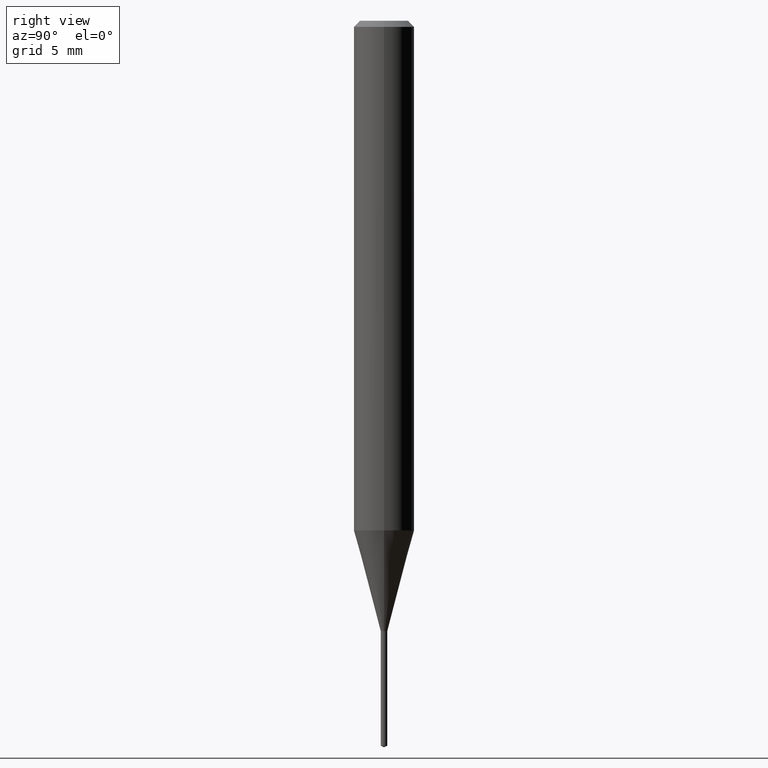
[diagram: clean part render]
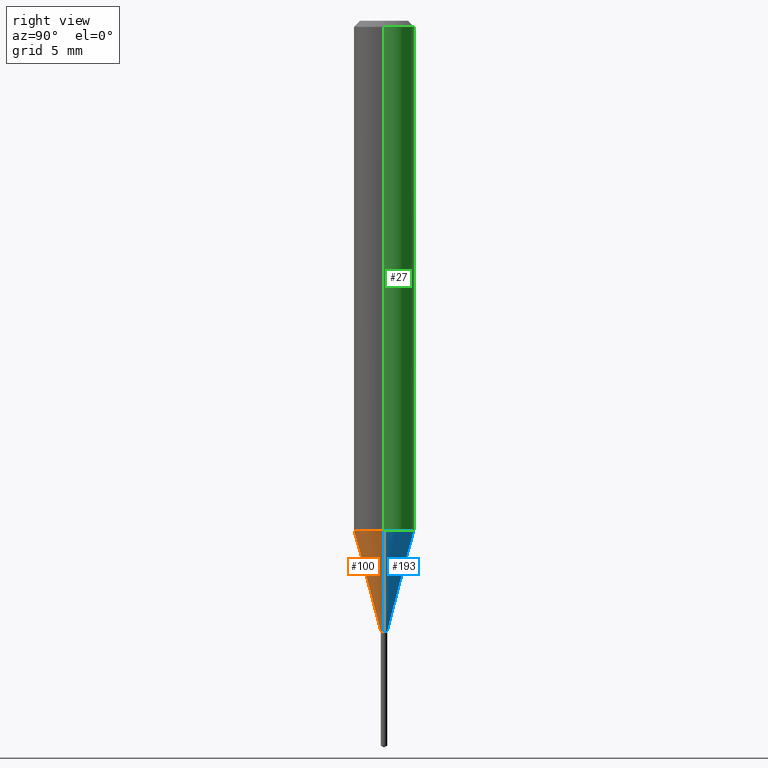
[diagram: same view with three faces highlighted in distinct colors, each labeled with its STEP entity id]
A machine part, right view with three faces highlighted in distinct colors.
Their STEP definitions:

[orange] entity #100 — the highlighted conical surface has half-angle 15 deg.
#5 = CARTESIAN_POINT ( 'NONE',  ( 2.573460162125579230E-29, -3.674219073901972026E-15, -1.052338167478040765 ) ) ;
#20 = VERTEX_POINT ( 'NONE', #104 ) ;
#43 = CIRCLE ( 'NONE', #353, 0.06250000000000013878 ) ;
#64 = ORIENTED_EDGE ( 'NONE', *, *, #450, .F. ) ;
#74 = DIRECTION ( 'NONE',  ( -2.445468806185136597E-29, 3.491481338843145583E-15, 1.000000000000000000 ) ) ;
#81 = LINE ( 'NONE', #422, #185 ) ;
#86 = LINE ( 'NONE', #286, #344 ) ;
#98 = VERTEX_POINT ( 'NONE', #225 ) ;
#100 = ADVANCED_FACE ( 'NONE', ( #430 ), #176, .T. ) ;
#104 = CARTESIAN_POINT ( 'NONE',  ( -0.06250000000000013878, -3.230129864051909015E-15, -1.052338167478040765 ) ) ;
#109 = EDGE_LOOP ( 'NONE', ( #287, #371, #435, #64 ) ) ;
#147 = CIRCLE ( 'NONE', #156, 0.006749999999999999056 ) ;
#151 = DIRECTION ( 'NONE',  ( 1.000000000000000000, -6.982962677686262766E-15, 0.000000000000000000 ) ) ;
#156 = AXIS2_PLACEMENT_3D ( 'NONE', #275, #462, #268 ) ;
#160 = DIRECTION ( 'NONE',  ( -2.445468806185136597E-29, 3.491481338843145583E-15, 1.000000000000000000 ) ) ;
#175 = VERTEX_POINT ( 'NONE', #310 ) ;
#176 = CONICAL_SURFACE ( 'NONE', #337, 0.006749999999999999056, 0.2617993877991569573 ) ;
#185 = VECTOR ( 'NONE', #196, 39.37007874015748854 ) ;
#189 = CARTESIAN_POINT ( 'NONE',  ( 3.082268883315746308E-29, -4.400663079477901323E-15, -1.260399999999999965 ) ) ;
#196 = DIRECTION ( 'NONE',  ( 0.2588190451025279559, 1.565188264969568522E-15, 0.9659258262890662028 ) ) ;
#211 = VERTEX_POINT ( 'NONE', #242 ) ;
#225 = CARTESIAN_POINT ( 'NONE',  ( -0.006749999999999999056, -4.281300651434752064E-15, -1.260399999999999965 ) ) ;
#235 = EDGE_CURVE ( 'NONE', #98, #20, #86, .T. ) ;
#242 = CARTESIAN_POINT ( 'NONE',  ( 0.006749999999999999056, -4.447798077552283497E-15, -1.260399999999999965 ) ) ;
#268 = DIRECTION ( 'NONE',  ( 1.000000000000000000, -6.982962677686226479E-15, 0.000000000000000000 ) ) ;
#275 = CARTESIAN_POINT ( 'NONE',  ( 3.082268883315746308E-29, -4.400663079477901323E-15, -1.260399999999999965 ) ) ;
#286 = CARTESIAN_POINT ( 'NONE',  ( -0.006749999999999999056, -4.352701444814094321E-15, -1.260399999999999965 ) ) ;
#287 = ORIENTED_EDGE ( 'NONE', *, *, #235, .F. ) ;
#310 = CARTESIAN_POINT ( 'NONE',  ( 0.06250000000000013878, -4.110654241257365273E-15, -1.052338167478040765 ) ) ;
#313 = DIRECTION ( 'NONE',  ( 1.000000000000000000, -6.982962677686226479E-15, 0.000000000000000000 ) ) ;
#337 = AXIS2_PLACEMENT_3D ( 'NONE', #189, #74, #313 ) ;
#344 = VECTOR ( 'NONE', #439, 39.37007874015748854 ) ;
#353 = AXIS2_PLACEMENT_3D ( 'NONE', #5, #160, #151 ) ;
#371 = ORIENTED_EDGE ( 'NONE', *, *, #401, .T. ) ;
#401 = EDGE_CURVE ( 'NONE', #98, #211, #147, .T. ) ;
#422 = CARTESIAN_POINT ( 'NONE',  ( 0.006749999999999999056, -4.447798077552283497E-15, -1.260399999999999965 ) ) ;
#430 = FACE_OUTER_BOUND ( 'NONE', #109, .T. ) ;
#435 = ORIENTED_EDGE ( 'NONE', *, *, #476, .T. ) ;
#439 = DIRECTION ( 'NONE',  ( -0.2588190451025279559, 5.211531920934590485E-15, 0.9659258262890662028 ) ) ;
#450 = EDGE_CURVE ( 'NONE', #20, #175, #43, .T. ) ;
#462 = DIRECTION ( 'NONE',  ( -2.445468806185136597E-29, 3.491481338843145583E-15, 1.000000000000000000 ) ) ;
#476 = EDGE_CURVE ( 'NONE', #211, #175, #81, .T. ) ;

[blue] entity #193 — the highlighted conical surface has half-angle 15 deg.
#8 = DIRECTION ( 'NONE',  ( -2.445468806185136597E-29, 3.491481338843145583E-15, 1.000000000000000000 ) ) ;
#20 = VERTEX_POINT ( 'NONE', #104 ) ;
#35 = ORIENTED_EDGE ( 'NONE', *, *, #124, .T. ) ;
#42 = CIRCLE ( 'NONE', #184, 0.06250000000000013878 ) ;
#81 = LINE ( 'NONE', #422, #185 ) ;
#86 = LINE ( 'NONE', #286, #344 ) ;
#90 = DIRECTION ( 'NONE',  ( -2.445468806185136597E-29, 3.491481338843145583E-15, 1.000000000000000000 ) ) ;
#98 = VERTEX_POINT ( 'NONE', #225 ) ;
#104 = CARTESIAN_POINT ( 'NONE',  ( -0.06250000000000013878, -3.230129864051909015E-15, -1.052338167478040765 ) ) ;
#106 = AXIS2_PLACEMENT_3D ( 'NONE', #209, #90, #396 ) ;
#119 = DIRECTION ( 'NONE',  ( -2.445468806185136597E-29, 3.491481338843145583E-15, 1.000000000000000000 ) ) ;
#124 = EDGE_CURVE ( 'NONE', #211, #98, #389, .T. ) ;
#131 = FACE_OUTER_BOUND ( 'NONE', #444, .T. ) ;
#146 = ORIENTED_EDGE ( 'NONE', *, *, #235, .T. ) ;
#152 = EDGE_CURVE ( 'NONE', #175, #20, #42, .T. ) ;
#153 = DIRECTION ( 'NONE',  ( 1.000000000000000000, -6.982962677686262766E-15, 0.000000000000000000 ) ) ;
#175 = VERTEX_POINT ( 'NONE', #310 ) ;
#184 = AXIS2_PLACEMENT_3D ( 'NONE', #355, #8, #153 ) ;
#185 = VECTOR ( 'NONE', #196, 39.37007874015748854 ) ;
#192 = CARTESIAN_POINT ( 'NONE',  ( 3.082268883315746308E-29, -4.400663079477901323E-15, -1.260399999999999965 ) ) ;
#193 = ADVANCED_FACE ( 'NONE', ( #131 ), #362, .T. ) ;
#196 = DIRECTION ( 'NONE',  ( 0.2588190451025279559, 1.565188264969568522E-15, 0.9659258262890662028 ) ) ;
#209 = CARTESIAN_POINT ( 'NONE',  ( 3.082268883315746308E-29, -4.400663079477901323E-15, -1.260399999999999965 ) ) ;
#211 = VERTEX_POINT ( 'NONE', #242 ) ;
#225 = CARTESIAN_POINT ( 'NONE',  ( -0.006749999999999999056, -4.281300651434752064E-15, -1.260399999999999965 ) ) ;
#231 = DIRECTION ( 'NONE',  ( 1.000000000000000000, -6.982962677686226479E-15, 0.000000000000000000 ) ) ;
#235 = EDGE_CURVE ( 'NONE', #98, #20, #86, .T. ) ;
#242 = CARTESIAN_POINT ( 'NONE',  ( 0.006749999999999999056, -4.447798077552283497E-15, -1.260399999999999965 ) ) ;
#286 = CARTESIAN_POINT ( 'NONE',  ( -0.006749999999999999056, -4.352701444814094321E-15, -1.260399999999999965 ) ) ;
#310 = CARTESIAN_POINT ( 'NONE',  ( 0.06250000000000013878, -4.110654241257365273E-15, -1.052338167478040765 ) ) ;
#327 = ORIENTED_EDGE ( 'NONE', *, *, #152, .F. ) ;
#344 = VECTOR ( 'NONE', #439, 39.37007874015748854 ) ;
#355 = CARTESIAN_POINT ( 'NONE',  ( 2.573460162125579230E-29, -3.674219073901972026E-15, -1.052338167478040765 ) ) ;
#362 = CONICAL_SURFACE ( 'NONE', #106, 0.006749999999999999056, 0.2617993877991569573 ) ;
#389 = CIRCLE ( 'NONE', #400, 0.006749999999999999056 ) ;
#396 = DIRECTION ( 'NONE',  ( 1.000000000000000000, -6.982962677686226479E-15, 0.000000000000000000 ) ) ;
#400 = AXIS2_PLACEMENT_3D ( 'NONE', #192, #119, #231 ) ;
#422 = CARTESIAN_POINT ( 'NONE',  ( 0.006749999999999999056, -4.447798077552283497E-15, -1.260399999999999965 ) ) ;
#439 = DIRECTION ( 'NONE',  ( -0.2588190451025279559, 5.211531920934590485E-15, 0.9659258262890662028 ) ) ;
#444 = EDGE_LOOP ( 'NONE', ( #35, #146, #327, #470 ) ) ;
#470 = ORIENTED_EDGE ( 'NONE', *, *, #476, .F. ) ;
#476 = EDGE_CURVE ( 'NONE', #211, #175, #81, .T. ) ;

[green] entity #27 — the highlighted cylindrical surface (edge-blend (fillet) strip) has radius 1.5875 mm, axis along (-0, 0, 1).
#1 = ORIENTED_EDGE ( 'NONE', *, *, #152, .T. ) ;
#8 = DIRECTION ( 'NONE',  ( -2.445468806185136597E-29, 3.491481338843145583E-15, 1.000000000000000000 ) ) ;
#20 = VERTEX_POINT ( 'NONE', #104 ) ;
#27 = ADVANCED_FACE ( 'NONE', ( #257 ), #336, .T. ) ;
#38 = VERTEX_POINT ( 'NONE', #49 ) ;
#39 = DIRECTION ( 'NONE',  ( -2.445468806185136597E-29, 3.491481338843145583E-15, 1.000000000000000000 ) ) ;
#42 = CIRCLE ( 'NONE', #184, 0.06250000000000013878 ) ;
#46 = DIRECTION ( 'NONE',  ( 1.000000000000000000, -6.982962677686266711E-15, 0.000000000000000000 ) ) ;
#47 = EDGE_CURVE ( 'NONE', #175, #38, #115, .T. ) ;
#49 = CARTESIAN_POINT ( 'NONE',  ( 0.06250000000000000000, -4.800786840909313294E-16, -0.01250000000000008396 ) ) ;
#61 = EDGE_LOOP ( 'NONE', ( #1, #440, #358, #132 ) ) ;
#62 = EDGE_CURVE ( 'NONE', #38, #301, #238, .T. ) ;
#97 = AXIS2_PLACEMENT_3D ( 'NONE', #269, #39, #46 ) ;
#104 = CARTESIAN_POINT ( 'NONE',  ( -0.06250000000000013878, -3.230129864051909015E-15, -1.052338167478040765 ) ) ;
#115 = LINE ( 'NONE', #423, #208 ) ;
#132 = ORIENTED_EDGE ( 'NONE', *, *, #47, .F. ) ;
#152 = EDGE_CURVE ( 'NONE', #175, #20, #42, .T. ) ;
#153 = DIRECTION ( 'NONE',  ( 1.000000000000000000, -6.982962677686262766E-15, 0.000000000000000000 ) ) ;
#162 = EDGE_CURVE ( 'NONE', #20, #301, #454, .T. ) ;
#175 = VERTEX_POINT ( 'NONE', #310 ) ;
#184 = AXIS2_PLACEMENT_3D ( 'NONE', #355, #8, #153 ) ;
#208 = VECTOR ( 'NONE', #463, 39.37007874015748143 ) ;
#238 = CIRCLE ( 'NONE', #97, 0.06250000000000000000 ) ;
#244 = CARTESIAN_POINT ( 'NONE',  ( -0.06250000000000000000, -1.414842085468692191E-15, -0.01250000000000008396 ) ) ;
#257 = FACE_OUTER_BOUND ( 'NONE', #61, .T. ) ;
#269 = CARTESIAN_POINT ( 'NONE',  ( 3.056836007731441415E-31, -4.364351673553961684E-17, -0.01250000000000008396 ) ) ;
#296 = CARTESIAN_POINT ( 'NONE',  ( 0.000000000000000000, 0.000000000000000000, 0.000000000000000000 ) ) ;
#301 = VERTEX_POINT ( 'NONE', #244 ) ;
#306 = DIRECTION ( 'NONE',  ( -2.445468806185136877E-29, 3.491481338843145188E-15, 1.000000000000000000 ) ) ;
#310 = CARTESIAN_POINT ( 'NONE',  ( 0.06250000000000013878, -4.110654241257365273E-15, -1.052338167478040765 ) ) ;
#319 = VECTOR ( 'NONE', #306, 39.37007874015748143 ) ;
#336 = CYLINDRICAL_SURFACE ( 'NONE', #409, 0.06250000000000006939 ) ;
#343 = CARTESIAN_POINT ( 'NONE',  ( -0.06250000000000006939, 4.440892098500631092E-16, -3.074334431409319267E-30 ) ) ;
#351 = DIRECTION ( 'NONE',  ( 1.000000000000000000, -6.982962677686266711E-15, 4.876176775795935793E-29 ) ) ;
#355 = CARTESIAN_POINT ( 'NONE',  ( 2.573460162125579230E-29, -3.674219073901972026E-15, -1.052338167478040765 ) ) ;
#358 = ORIENTED_EDGE ( 'NONE', *, *, #62, .F. ) ;
#409 = AXIS2_PLACEMENT_3D ( 'NONE', #296, #448, #351 ) ;
#423 = CARTESIAN_POINT ( 'NONE',  ( 0.06250000000000006939, -4.364351673553921624E-16, 3.047610484872463374E-30 ) ) ;
#440 = ORIENTED_EDGE ( 'NONE', *, *, #162, .T. ) ;
#448 = DIRECTION ( 'NONE',  ( -2.445468806185136597E-29, 3.491481338843145583E-15, 1.000000000000000000 ) ) ;
#454 = LINE ( 'NONE', #343, #319 ) ;
#463 = DIRECTION ( 'NONE',  ( -2.445468806185136877E-29, 3.491481338843145188E-15, 1.000000000000000000 ) ) ;